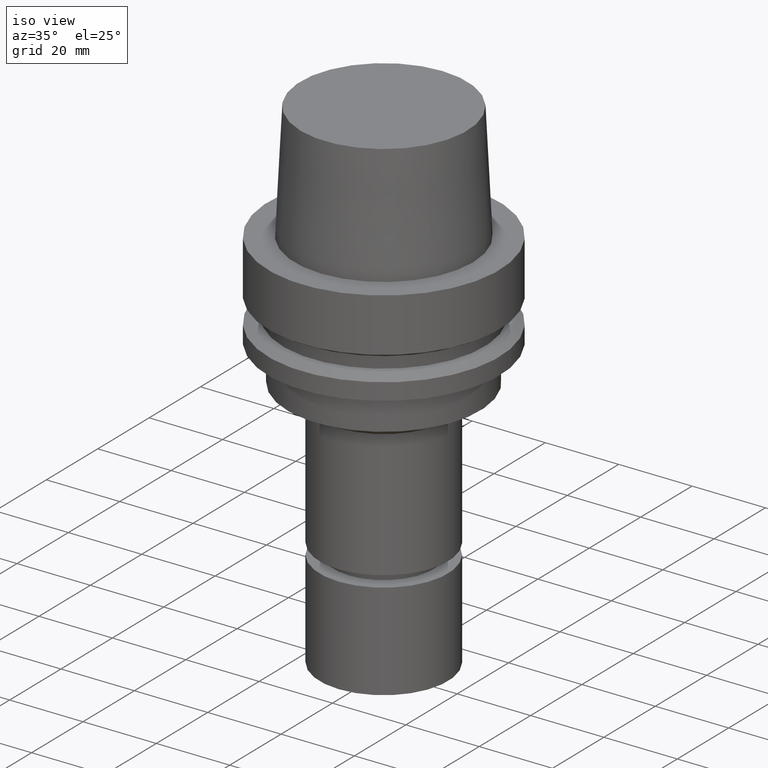
[diagram: clean part render]
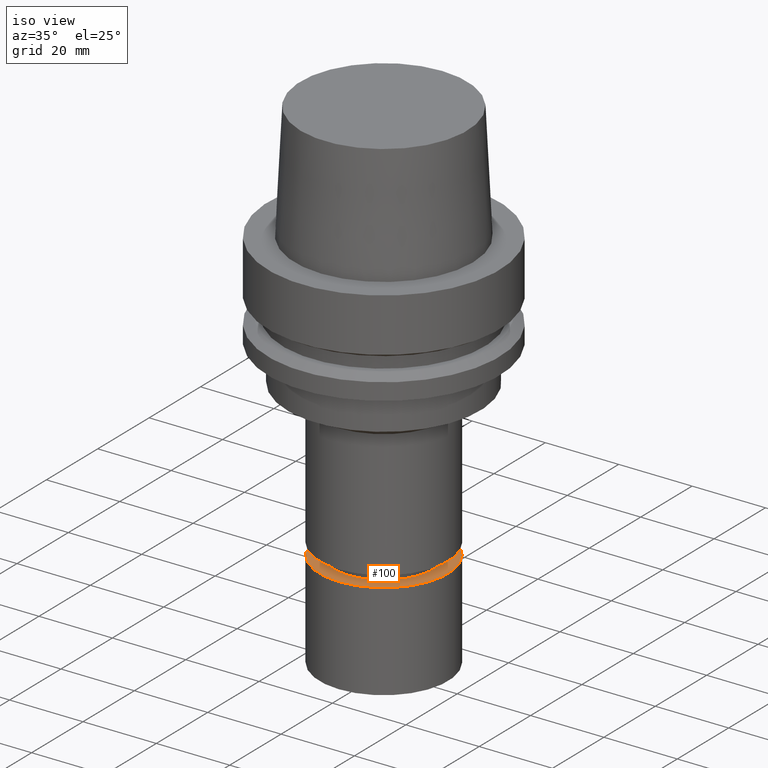
[diagram: same view with one face highlighted and labeled with its STEP entity id]
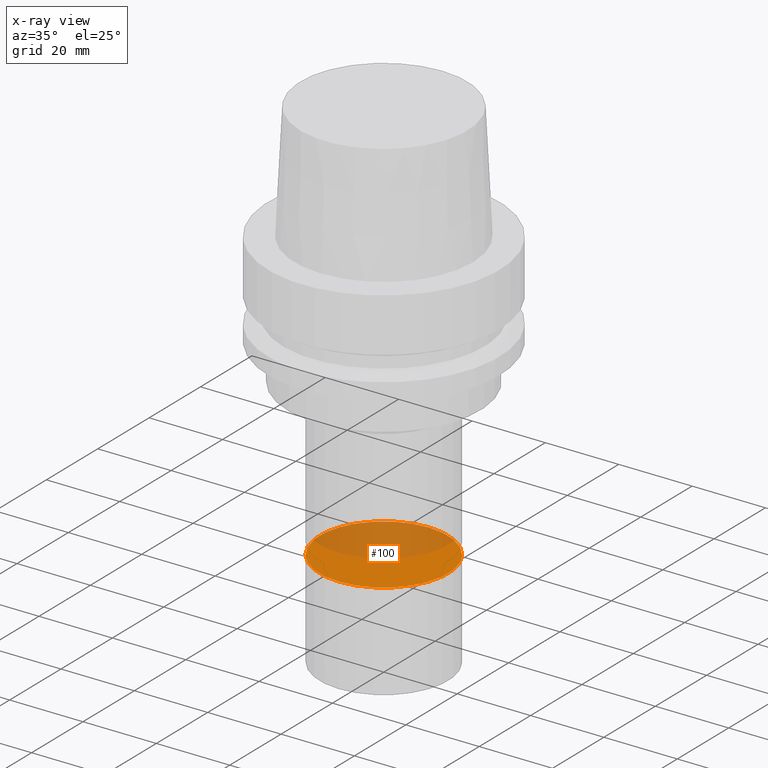
[diagram: x-ray of the same camera — body ghosted, the highlighted face saturated]
A machine part, iso view. The second image highlights one B-rep face of the part: STEP entity #100.
The next image is the same camera in x-ray: the body ghosted, the highlighted face saturated — about 46% of this face is hidden behind the body in this view.
In plain terms, the highlighted planar face has unit normal (-0, -0, 1).
Its self-contained STEP definition (entity closure, byte-faithful):
#100=ADVANCED_FACE('Unnamed[1]',(#247),#248,.T.);
#109=EDGE_CURVE('Unnamed[1]',#261,#261,#262,.T.);
#247=FACE_OUTER_BOUND('',#445,.T.);
#248=PLANE('',#446);
#261=VERTEX_POINT('',#463);
#262=CIRCLE('',#464,17.5);
#445=EDGE_LOOP('',(#665));
#446=AXIS2_PLACEMENT_3D('',#666,#667,#668);
#463=CARTESIAN_POINT('',(4.80673962098472E-015,17.5,-78.5000152587891));
#464=AXIS2_PLACEMENT_3D('',#681,#682,#683);
#665=ORIENTED_EDGE('',*,*,#109,.F.);
#666=CARTESIAN_POINT('',(4.80673962098472E-015,8.75000000000001,-78.5000152587891));
#667=DIRECTION('',(-6.12323399573677E-017,-1.22464679914735E-016,1.0));
#668=DIRECTION('',(1.23259516440783E-032,-1.0,-1.22464679914735E-016));
#681=CARTESIAN_POINT('',(4.80673962098472E-015,9.61347924196944E-015,-78.5000152587891));
#682=DIRECTION('',(6.12323399573677E-017,1.22464679914735E-016,-1.0));
#683=DIRECTION('',(-1.23259516440783E-032,1.0,1.22464679914735E-016));